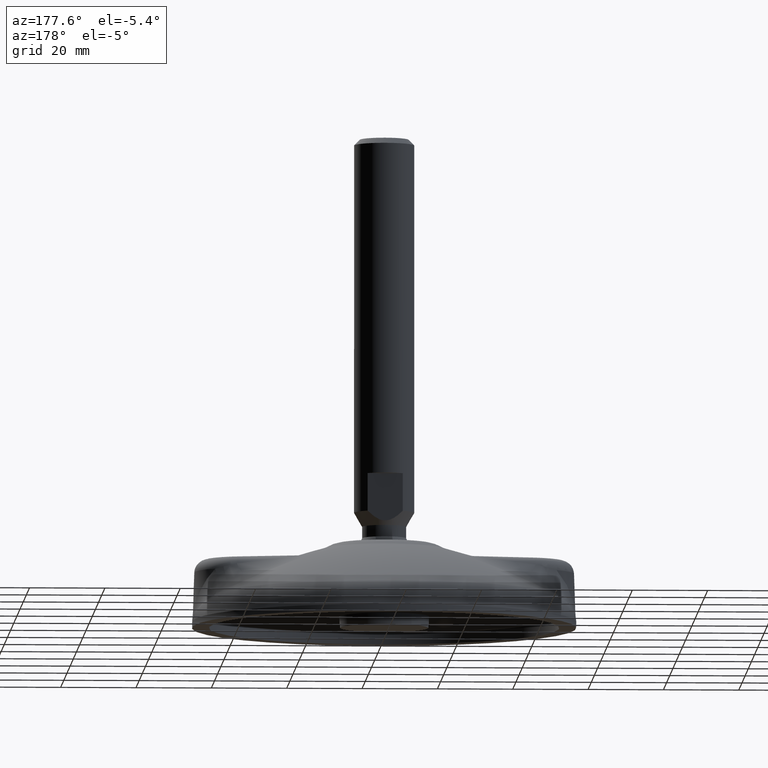
[diagram: clean part render]
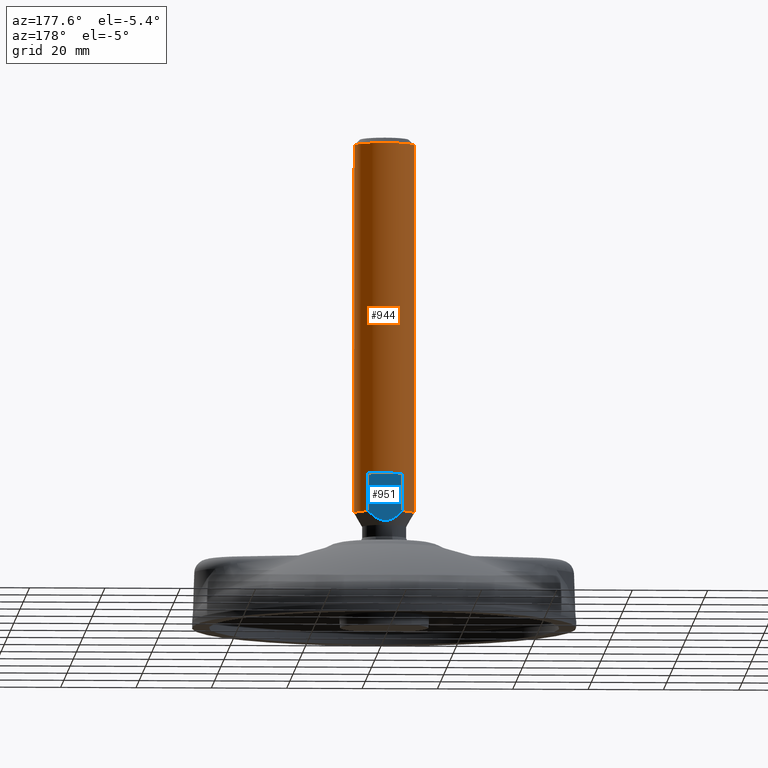
[diagram: same view with the hole feature highlighted: cylindrical wall and planar end face, labeled with their STEP entity ids]
A machine part, auxiliary view. The highlighted faces form one hole feature of diameter 16 mm: the cylindrical wall (entity #944, orange) and its adjacent planar end face (entity #951, blue) — they share a circular edge in the B-rep.
Wall:
#93=CYLINDRICAL_SURFACE('',#1073,7.99999979647845);
#107=LINE('',#4676,#129);
#108=LINE('',#4682,#130);
#109=LINE('',#4686,#131);
#110=LINE('',#4690,#132);
#111=LINE('',#4694,#133);
#129=VECTOR('',#1306,7.99999979647845);
#130=VECTOR('',#1311,10.0000010619647);
#131=VECTOR('',#1314,10.0000009319569);
#132=VECTOR('',#1317,10.0000009319569);
#133=VECTOR('',#1320,10.0000010619643);
#196=FACE_OUTER_BOUND('',#263,.T.);
#263=EDGE_LOOP('',(#777,#778,#779,#780,#781,#782,#783,#784,#785,#786,#787,
#788,#789,#790));
#335=CIRCLE('',#1074,7.99999979647919);
#336=CIRCLE('',#1075,7.99999979647919);
#337=CIRCLE('',#1076,7.99999877179907);
#338=CIRCLE('',#1077,7.99999877179907);
#339=CIRCLE('',#1078,7.99999979647845);
#340=CIRCLE('',#1079,7.99999877179907);
#341=CIRCLE('',#1080,7.99999979647845);
#342=CIRCLE('',#1081,7.99999877179907);
#414=VERTEX_POINT('',#4671);
#415=VERTEX_POINT('',#4672);
#416=VERTEX_POINT('',#4675);
#417=VERTEX_POINT('',#4677);
#418=VERTEX_POINT('',#4679);
#419=VERTEX_POINT('',#4681);
#420=VERTEX_POINT('',#4683);
#421=VERTEX_POINT('',#4685);
#422=VERTEX_POINT('',#4687);
#423=VERTEX_POINT('',#4689);
#424=VERTEX_POINT('',#4691);
#425=VERTEX_POINT('',#4693);
#538=EDGE_CURVE('',#414,#415,#335,.T.);
#539=EDGE_CURVE('',#415,#414,#336,.T.);
#540=EDGE_CURVE('',#415,#416,#107,.T.);
#541=EDGE_CURVE('',#416,#417,#337,.T.);
#542=EDGE_CURVE('',#417,#418,#338,.T.);
#543=EDGE_CURVE('',#418,#419,#108,.T.);
#544=EDGE_CURVE('',#419,#420,#339,.T.);
#545=EDGE_CURVE('',#420,#421,#109,.T.);
#546=EDGE_CURVE('',#421,#422,#340,.T.);
#547=EDGE_CURVE('',#423,#422,#110,.T.);
#548=EDGE_CURVE('',#424,#423,#341,.T.);
#549=EDGE_CURVE('',#425,#424,#111,.T.);
#550=EDGE_CURVE('',#425,#416,#342,.T.);
#777=ORIENTED_EDGE('',*,*,#538,.F.);
#778=ORIENTED_EDGE('',*,*,#539,.F.);
#779=ORIENTED_EDGE('',*,*,#540,.T.);
#780=ORIENTED_EDGE('',*,*,#541,.T.);
#781=ORIENTED_EDGE('',*,*,#542,.T.);
#782=ORIENTED_EDGE('',*,*,#543,.T.);
#783=ORIENTED_EDGE('',*,*,#544,.T.);
#784=ORIENTED_EDGE('',*,*,#545,.T.);
#785=ORIENTED_EDGE('',*,*,#546,.T.);
#786=ORIENTED_EDGE('',*,*,#547,.F.);
#787=ORIENTED_EDGE('',*,*,#548,.F.);
#788=ORIENTED_EDGE('',*,*,#549,.F.);
#789=ORIENTED_EDGE('',*,*,#550,.T.);
#790=ORIENTED_EDGE('',*,*,#540,.F.);
#944=ADVANCED_FACE('',(#196),#93,.T.);
#1073=AXIS2_PLACEMENT_3D('',#4670,#1300,#1301);
#1074=AXIS2_PLACEMENT_3D('',#4673,#1302,#1303);
#1075=AXIS2_PLACEMENT_3D('',#4674,#1304,#1305);
#1076=AXIS2_PLACEMENT_3D('',#4678,#1307,#1308);
#1077=AXIS2_PLACEMENT_3D('',#4680,#1309,#1310);
#1078=AXIS2_PLACEMENT_3D('',#4684,#1312,#1313);
#1079=AXIS2_PLACEMENT_3D('',#4688,#1315,#1316);
#1080=AXIS2_PLACEMENT_3D('',#4692,#1318,#1319);
#1081=AXIS2_PLACEMENT_3D('',#4695,#1321,#1322);
#1300=DIRECTION('center_axis',(-1.3938298E-8,0.,1.));
#1301=DIRECTION('ref_axis',(1.,-1.E-8,1.3938298E-8));
#1302=DIRECTION('center_axis',(-2.66910402133194E-7,5.99699080432297E-7,
0.999999999999785));
#1303=DIRECTION('ref_axis',(-0.813826254469302,0.581108275226009,-5.6570879113171E-7));
#1304=DIRECTION('center_axis',(-2.66910402133194E-7,5.99699080432297E-7,
0.999999999999785));
#1305=DIRECTION('ref_axis',(-0.813826254469302,0.581108275226009,-5.6570879113171E-7));
#1306=DIRECTION('',(1.3938298E-8,0.,-1.));
#1307=DIRECTION('center_axis',(0.,0.,1.));
#1308=DIRECTION('ref_axis',(1.,0.,0.));
#1309=DIRECTION('center_axis',(0.,0.,1.));
#1310=DIRECTION('ref_axis',(1.,0.,0.));
#1311=DIRECTION('',(-1.3938299E-8,0.,1.));
#1312=DIRECTION('center_axis',(0.,0.,1.));
#1313=DIRECTION('ref_axis',(0.,1.,0.));
#1314=DIRECTION('',(1.3938299E-8,0.,-1.));
#1315=DIRECTION('center_axis',(0.,0.,1.));
#1316=DIRECTION('ref_axis',(1.,0.,0.));
#1317=DIRECTION('',(1.3938299E-8,0.,-1.));
#1318=DIRECTION('center_axis',(0.,0.,-1.));
#1319=DIRECTION('ref_axis',(0.,-1.,0.));
#1320=DIRECTION('',(-1.3938299E-8,0.,1.));
#1321=DIRECTION('center_axis',(0.,0.,1.));
#1322=DIRECTION('ref_axis',(1.,0.,0.));
#4670=CARTESIAN_POINT('Origin',(-1.716041351E-6,4.919660057E-6,65.6492143294025));
#4671=CARTESIAN_POINT('',(-6.51061247124665,4.64887100320202,128.500211226965));
#4672=CARTESIAN_POINT('',(-8.00000238855587,4.99966005398507E-6,128.500221504625));
#4673=CARTESIAN_POINT('Origin',(-2.60112281353126E-6,4.91966157902659E-6,
128.500215752635));
#4674=CARTESIAN_POINT('Origin',(-2.60112281353126E-6,4.91966157902659E-6,
128.500215752635));
#4675=CARTESIAN_POINT('',(-8.00000102467937,4.99966005398507E-6,30.6492141813937));
#4676=CARTESIAN_POINT('',(-8.0000015125198,4.99966005398507E-6,65.6492142178961));
#4677=CARTESIAN_POINT('',(-6.51060875137239,-4.64886302013846,30.6492142982112));
#4678=CARTESIAN_POINT('Origin',(-1.228200899E-6,4.919660057E-6,30.6492144044064));
#4679=CARTESIAN_POINT('',(-4.66368954590595,-6.49999491560716,30.6492145018294));
#4680=CARTESIAN_POINT('Origin',(-1.228200899E-6,4.919660057E-6,30.6492144044064));
#4681=CARTESIAN_POINT('',(-4.66369054501151,-6.49999508033994,40.6492154013672));
#4682=CARTESIAN_POINT('',(-4.66369089346878,-6.49999508033994,65.6492143394025));
#4683=CARTESIAN_POINT('',(4.66368780984368,-6.49999508033994,40.6492154013672));
#4684=CARTESIAN_POINT('Origin',(-1.367583916E-6,4.919660087E-6,40.6492154013672));
#4685=CARTESIAN_POINT('',(4.66368707246329,-6.49999491799198,30.6492145333502));
#4686=CARTESIAN_POINT('',(4.66368732200339,-6.49999508033994,75.6492154013672));
#4687=CARTESIAN_POINT('',(4.66368699515831,6.50000476796786,30.6492146753531));
#4688=CARTESIAN_POINT('Origin',(-1.228200899E-6,4.919660057E-6,30.6492144044064));
#4689=CARTESIAN_POINT('',(4.66368780984367,6.50000491966006,40.6492154013672));
#4690=CARTESIAN_POINT('',(4.66368732200339,6.50000491966006,75.6492154013672));
#4691=CARTESIAN_POINT('',(-4.66369054501151,6.50000491966006,40.6492154013672));
#4692=CARTESIAN_POINT('Origin',(-1.367583916E-6,4.919660087E-6,40.6492154013672));
#4693=CARTESIAN_POINT('',(-4.66368946859972,6.50000476558304,30.6492146438335));
#4694=CARTESIAN_POINT('',(-4.66369089346877,6.50000491966006,65.6492143394028));
#4695=CARTESIAN_POINT('Origin',(-1.228200899E-6,4.919660057E-6,30.6492144044064));
End face:
#18=(
BOUNDED_CURVE()
B_SPLINE_CURVE(2,(#4697,#4698,#4699,#4700),.UNSPECIFIED.,.F.,.F.)
B_SPLINE_CURVE_WITH_KNOTS((3,1,3),(7830.70357485332,8695.52089908386,15257.474747572),
 .UNSPECIFIED.)
CURVE()
GEOMETRIC_REPRESENTATION_ITEM()
RATIONAL_B_SPLINE_CURVE((3981.50271490155,4088.49412396927,4793.31888429945,
3981.50270396515))
REPRESENTATION_ITEM('')
);
#110=LINE('',#4690,#132);
#111=LINE('',#4694,#133);
#115=LINE('',#4721,#137);
#132=VECTOR('',#1317,10.0000009319569);
#133=VECTOR('',#1320,10.0000010619643);
#137=VECTOR('',#1346,9.32737835485517);
#203=FACE_OUTER_BOUND('',#270,.T.);
#270=EDGE_LOOP('',(#817,#818,#819,#820));
#422=VERTEX_POINT('',#4687);
#423=VERTEX_POINT('',#4689);
#424=VERTEX_POINT('',#4691);
#425=VERTEX_POINT('',#4693);
#547=EDGE_CURVE('',#423,#422,#110,.T.);
#549=EDGE_CURVE('',#425,#424,#111,.T.);
#551=EDGE_CURVE('',#425,#422,#18,.F.);
#560=EDGE_CURVE('',#423,#424,#115,.T.);
#817=ORIENTED_EDGE('',*,*,#547,.T.);
#818=ORIENTED_EDGE('',*,*,#551,.F.);
#819=ORIENTED_EDGE('',*,*,#549,.T.);
#820=ORIENTED_EDGE('',*,*,#560,.F.);
#840=PLANE('',#1092);
#951=ADVANCED_FACE('',(#203),#840,.F.);
#1092=AXIS2_PLACEMENT_3D('',#4722,#1347,#1348);
#1317=DIRECTION('',(1.3938299E-8,0.,-1.));
#1320=DIRECTION('',(-1.3938299E-8,0.,1.));
#1346=DIRECTION('',(-1.,0.,0.));
#1347=DIRECTION('center_axis',(0.,-1.,0.));
#1348=DIRECTION('ref_axis',(0.,0.,-1.));
#4687=CARTESIAN_POINT('',(4.66368699515831,6.50000476796786,30.6492146753531));
#4689=CARTESIAN_POINT('',(4.66368780984367,6.50000491966006,40.6492154013672));
#4690=CARTESIAN_POINT('',(4.66368732200339,6.50000491966006,75.6492154013672));
#4691=CARTESIAN_POINT('',(-4.66369054501151,6.50000491966006,40.6492154013672));
#4693=CARTESIAN_POINT('',(-4.66368946859972,6.50000476558304,30.6492146438335));
#4694=CARTESIAN_POINT('',(-4.66369089346877,6.50000491966006,65.6492143394028));
#4697=CARTESIAN_POINT('Ctrl Pts',(4.66368621047321,6.50000491966116,30.6492143856281));
#4698=CARTESIAN_POINT('Ctrl Pts',(4.01278665801199,6.50000491966116,29.9919887560308));
#4699=CARTESIAN_POINT('Ctrl Pts',(-0.451092506664101,6.50000491966116,26.3956761811348));
#4700=CARTESIAN_POINT('Ctrl Pts',(-4.66368870802263,6.50000491966116,30.6492143448765));
#4721=CARTESIAN_POINT('',(4.66368787953519,6.50000491966006,40.6492154013672));
#4722=CARTESIAN_POINT('Origin',(-5.13005946972326,6.50000491966006,41.2790888848729));